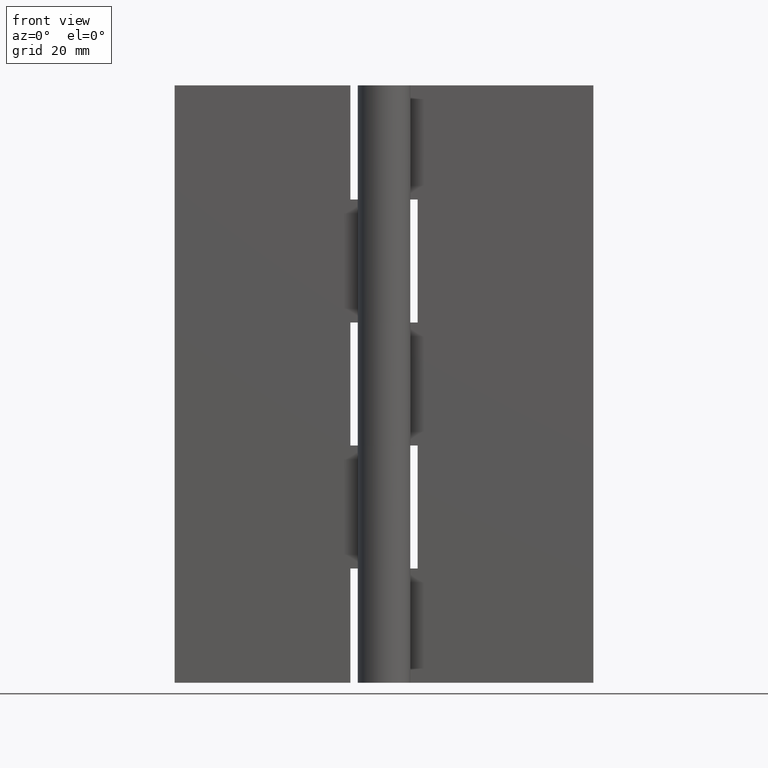
[diagram: clean part render]
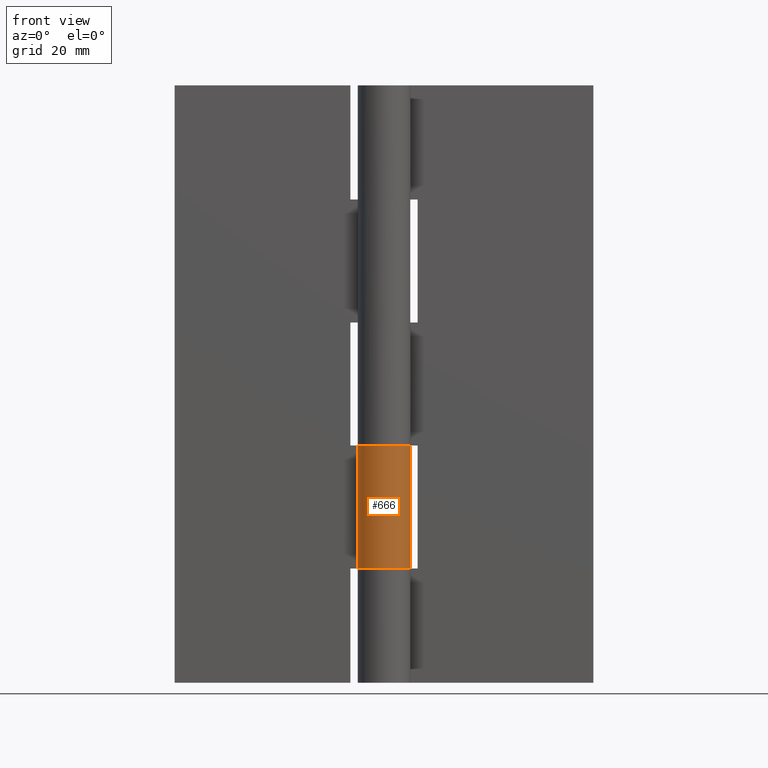
[diagram: same view with one face highlighted and labeled with its STEP entity id]
A machine part, front view. The second image highlights one B-rep face of the part: STEP entity #666.
In plain terms, the highlighted face is a freeform B-spline surface patch.
Its self-contained STEP definition (entity closure, byte-faithful):
#51=CARTESIAN_POINT('',(0.0,4.499999999999949,40.500007999999802));
#52=VERTEX_POINT('',#51);
#93=CARTESIAN_POINT('',(-3.774586070021455,2.450000000000000,40.500007999999752));
#94=VERTEX_POINT('',#93);
#100=CARTESIAN_POINT('',(0.0,4.500000000000000,40.500007999999752));
#101=CARTESIAN_POINT('',(3.499792616317230,4.499999999999999,40.500007999999752));
#102=CARTESIAN_POINT('',(4.361474838900626,1.107942791680491,40.500007999999752));
#103=CARTESIAN_POINT('',(5.223157061484022,-2.284114416639020,40.500007999999752));
#104=CARTESIAN_POINT('',(2.147673159491454,-3.954427897939219,40.500007999999752));
#105=CARTESIAN_POINT('',(-0.927810742501114,-5.624741379239418,40.500007999999752));
#106=CARTESIAN_POINT('',(-3.303919729592086,-3.055178296010259,40.500007999999752));
#107=CARTESIAN_POINT('',(-5.680028716683055,-0.485615212781102,40.500007999999752));
#108=CARTESIAN_POINT('',(-3.774586070021454,2.449999999999998,40.500007999999752));
#116=(BOUNDED_CURVE()B_SPLINE_CURVE(2,(#100,#101,#102,#103,#104,#105,#106,#107,#108),.UNSPECIFIED.,.F.,.U.)B_SPLINE_CURVE_WITH_KNOTS((3,2,2,2,3),(0.0,0.250000000000000,0.500000000000000,0.750000000000000,1.0),.UNSPECIFIED.)CURVE()GEOMETRIC_REPRESENTATION_ITEM()RATIONAL_B_SPLINE_CURVE((1.0,0.789369846542903,1.0,0.789369846542903,1.0,0.789369846542903,1.0,0.789369846542903,1.0))REPRESENTATION_ITEM(''));
#117=EDGE_CURVE('',#52,#94,#116,.T.);
#225=CARTESIAN_POINT('',(-3.774586070021455,2.450000000000000,19.500000000000000));
#226=VERTEX_POINT('',#225);
#227=CARTESIAN_POINT('',(0.0,4.499999999999949,19.500000000000000));
#228=VERTEX_POINT('',#227);
#229=CARTESIAN_POINT('',(-3.774586070021452,2.450000000000001,19.500000000000000));
#230=CARTESIAN_POINT('',(-5.680028716683057,-0.485615212781099,19.500000000000000));
#231=CARTESIAN_POINT('',(-3.303919729592088,-3.055178296010257,19.500000000000000));
#232=CARTESIAN_POINT('',(-0.927810742501120,-5.624741379239415,19.500000000000000));
#233=CARTESIAN_POINT('',(2.147673159491448,-3.954427897939223,19.500000000000000));
#234=CARTESIAN_POINT('',(5.223157061484022,-2.284114416639028,19.500000000000000));
#235=CARTESIAN_POINT('',(4.361474838900626,1.107942791680489,19.500000000000000));
#236=CARTESIAN_POINT('',(3.499792616317231,4.499999999999999,19.500000000000000));
#237=CARTESIAN_POINT('',(0.0,4.499999999999949,19.500000000000000));
#245=(BOUNDED_CURVE()B_SPLINE_CURVE(2,(#229,#230,#231,#232,#233,#234,#235,#236,#237),.UNSPECIFIED.,.F.,.U.)B_SPLINE_CURVE_WITH_KNOTS((3,2,2,2,3),(0.0,0.250000000000000,0.500000000000000,0.750000000000000,1.0),.UNSPECIFIED.)CURVE()GEOMETRIC_REPRESENTATION_ITEM()RATIONAL_B_SPLINE_CURVE((1.0,0.789369846542903,1.0,0.789369846542903,1.0,0.789369846542903,1.0,0.789369846542903,1.0))REPRESENTATION_ITEM(''));
#246=EDGE_CURVE('',#226,#228,#245,.T.);
#607=CARTESIAN_POINT('',(-3.774586070021455,2.450000000000000,40.500007999999752));
#608=CARTESIAN_POINT('',(-3.774586070021455,2.450000000000000,19.500000000000000));
#609=QUASI_UNIFORM_CURVE('',1,(#607,#608),.UNSPECIFIED.,.F.,.U.);
#610=EDGE_CURVE('',#94,#226,#609,.T.);
#634=CARTESIAN_POINT('',(-3.708567848799069,2.548828066161747,41.025008199999803));
#635=CARTESIAN_POINT('',(-3.708567848799069,2.548828066161747,18.961874795000000));
#636=CARTESIAN_POINT('',(-6.912883888284786,-2.113480702009903,41.025008199999789));
#637=CARTESIAN_POINT('',(-6.912883888284786,-2.113480702009903,18.961874795000000));
#638=CARTESIAN_POINT('',(-1.649255520259336,-4.186879055919110,41.025008199999803));
#639=CARTESIAN_POINT('',(-1.649255520259336,-4.186879055919110,18.961874795000000));
#640=CARTESIAN_POINT('',(3.614372847766115,-6.260277409828316,41.025008199999789));
#641=CARTESIAN_POINT('',(3.614372847766115,-6.260277409828316,18.961874795000000));
#642=CARTESIAN_POINT('',(4.450571385128624,-0.665142350083245,41.025008199999803));
#643=CARTESIAN_POINT('',(4.450571385128624,-0.665142350083245,18.961874795000000));
#644=CARTESIAN_POINT('',(5.286769922491132,4.929992709661827,41.025008199999789));
#645=CARTESIAN_POINT('',(5.286769922491132,4.929992709661827,18.961874795000000));
#646=CARTESIAN_POINT('',(-0.353065930775307,4.486128001799074,41.025008199999803));
#647=CARTESIAN_POINT('',(-0.353065930775307,4.486128001799074,18.961874795000000));
#655=(BOUNDED_SURFACE()B_SPLINE_SURFACE(1,2,((#634,#636,#638,#640,#642,#644,#646),(#635,#637,#639,#641,#643,#645,#647)),.UNSPECIFIED.,.F.,.F.,.U.)B_SPLINE_SURFACE_WITH_KNOTS((2,2),(3,2,2,3),(0.0,22.063133404999800),(0.0,8.682169334716267,17.364338669432531,26.046508004148802),.UNSPECIFIED.)GEOMETRIC_REPRESENTATION_ITEM()RATIONAL_B_SPLINE_SURFACE(((1.0,0.622514636637620,1.0,0.622514636637620,1.0,0.622514636637620,1.0),(1.0,0.622514636637620,1.0,0.622514636637620,1.0,0.622514636637620,1.0)))REPRESENTATION_ITEM('')SURFACE());
#656=ORIENTED_EDGE('',*,*,#117,.T.);
#657=ORIENTED_EDGE('',*,*,#610,.T.);
#658=ORIENTED_EDGE('',*,*,#246,.T.);
#659=CARTESIAN_POINT('',(0.0,4.499999999999949,40.500007999999802));
#660=CARTESIAN_POINT('',(0.0,4.499999999999949,19.500000000000000));
#661=QUASI_UNIFORM_CURVE('',1,(#659,#660),.UNSPECIFIED.,.F.,.U.);
#662=EDGE_CURVE('',#52,#228,#661,.T.);
#663=ORIENTED_EDGE('',*,*,#662,.F.);
#664=EDGE_LOOP('',(#656,#657,#658,#663));
#665=FACE_OUTER_BOUND('',#664,.T.);
#666=ADVANCED_FACE('',(#665),#655,.T.);